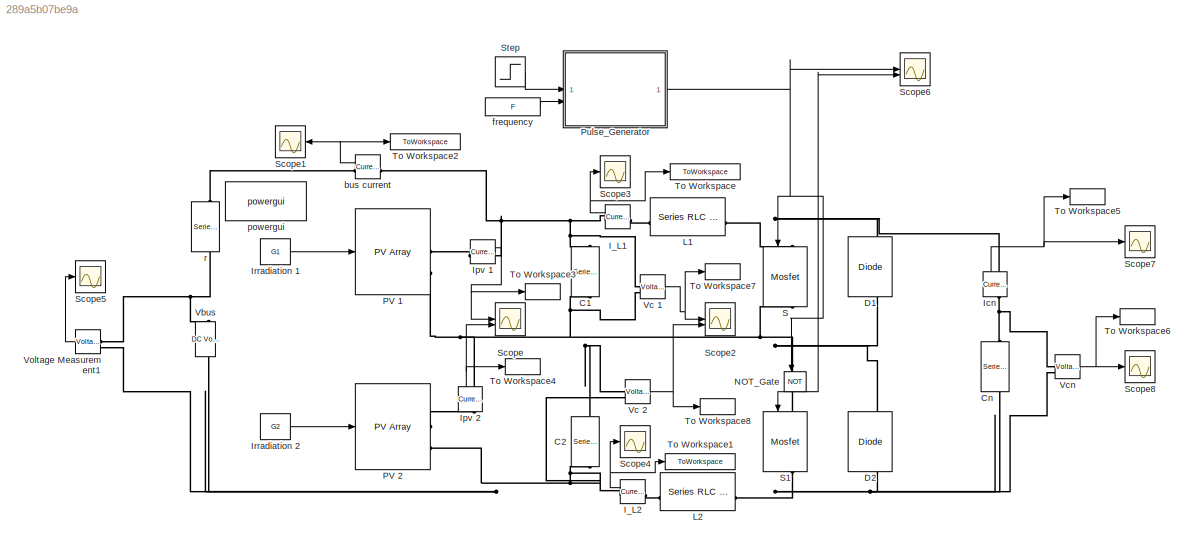
MODEL slx_289a5b07be9a
KIND model
CONFIG AbsTol = auto
CONFIG EnableMultiTasking = off
CONFIG FixedStep = auto
CONFIG MaxStep = auto
CONFIG MinStep = auto
CONFIG RelTol = 1e-3
CONFIG SampleTimeConstraint = Unconstrained
CONFIG SolverName = VariableStepAuto
CONFIG StartTime = 0.0
CONFIG StopTime = tFinal
BLOCK [Reference] C1  REF=spsSeriesRLCBranchLib/Series RLC Branch
  NameLocation = left
  SourceBlock = spsSeriesRLCBranchLib/Series RLC Branch
  SourceType = Series RLC Branch
BLOCK [Reference] C2  REF=spsSeriesRLCBranchLib/Series RLC Branch
  NameLocation = left
  SourceBlock = spsSeriesRLCBranchLib/Series RLC Branch
  SourceType = Series RLC Branch
BLOCK [Reference] Cn  REF=spsSeriesRLCBranchLib/Series RLC Branch
  NameLocation = left
  SourceBlock = spsSeriesRLCBranchLib/Series RLC Branch
  SourceType = Series RLC Branch
BLOCK [Reference] D1  REF=spsDiodeLib/Diode
  NameLocation = right
  SourceBlock = spsDiodeLib/Diode
  SourceType = Diode
BLOCK [Reference] D2  REF=spsDiodeLib/Diode
  NameLocation = right
  SourceBlock = spsDiodeLib/Diode
  SourceType = Diode
BLOCK [Reference] I_L1  REF=spsCurrentMeasurementLib/Current Measurement
  LibrarySourceBlock = sps_lib/Sensors and Measurements/Current Measurement
  SourceBlock = spsCurrentMeasurementLib/Current Measurement
  SourceType = Current Measurement
  UserDataPersistent = on
BLOCK [Reference] I_L2  REF=spsCurrentMeasurementLib/Current Measurement
  LibrarySourceBlock = sps_lib/Sensors and Measurements/Current Measurement
  SourceBlock = spsCurrentMeasurementLib/Current Measurement
  SourceType = Current Measurement
  UserDataPersistent = on
BLOCK [Reference] Icn   REF=spsCurrentMeasurementLib/Current Measurement
  LibrarySourceBlock = sps_lib/Sensors and Measurements/Current Measurement
  NameLocation = right
  SourceBlock = spsCurrentMeasurementLib/Current Measurement
  SourceType = Current Measurement
  UserDataPersistent = on
BLOCK [Reference] Ipv 1  REF=spsCurrentMeasurementLib/Current Measurement
  LibrarySourceBlock = sps_lib/Sensors and Measurements/Current Measurement
  SourceBlock = spsCurrentMeasurementLib/Current Measurement
  SourceType = Current Measurement
  UserDataPersistent = on
BLOCK [Reference] Ipv 2  REF=spsCurrentMeasurementLib/Current Measurement
  LibrarySourceBlock = sps_lib/Sensors and Measurements/Current Measurement
  NameLocation = right
  SourceBlock = spsCurrentMeasurementLib/Current Measurement
  SourceType = Current Measurement
  UserDataPersistent = on
BLOCK [Constant] Irradiation 1 
  SampleTime = Inf
  Value = G1
BLOCK [Constant] Irradiation 2
  SampleTime = Inf
  Value = G2
BLOCK [Reference] L1  REF=spsSeriesRLCBranchLib/Series RLC Branch
  SourceBlock = spsSeriesRLCBranchLib/Series RLC Branch
  SourceType = Series RLC Branch
BLOCK [Reference] L2  REF=spsSeriesRLCBranchLib/Series RLC Branch
  SourceBlock = spsSeriesRLCBranchLib/Series RLC Branch
  SourceType = Series RLC Branch
BLOCK [Logic] NOT_Gate
  AllPortsSameDT = off
  IconShape = distinctive
  NameLocation = left
  Operator = NOT
  OutDataTypeStr = boolean
BLOCK [Reference] PV 1  REF=spsPVArrayLib/PV Array
  SourceBlock = spsPVArrayLib/PV Array
  SourceType = PV array
BLOCK [Reference] PV 2  REF=spsPVArrayLib/PV Array
  SourceBlock = spsPVArrayLib/PV Array
  SourceType = PV array
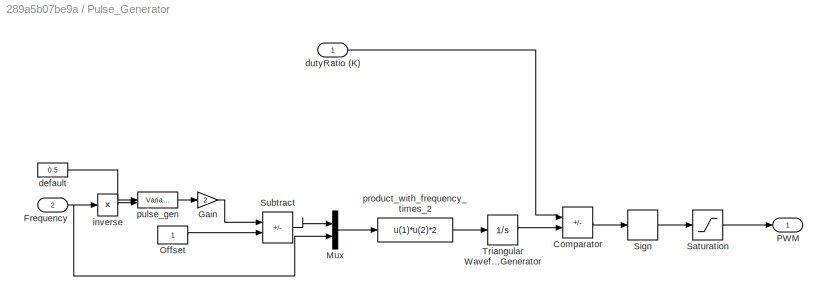
BLOCK [SubSystem] Pulse_Generator
BLOCK [Sum] Pulse_Generator/Comparator
  IconShape = rectangular
  Inputs = +-
BLOCK [Inport] Pulse_Generator/Frequency
  Port = 2
BLOCK [Gain] Pulse_Generator/Gain
  Gain = 2
BLOCK [Mux] Pulse_Generator/Mux
  DisplayOption = bar
  Inputs = 2
BLOCK [Constant] Pulse_Generator/Offset
BLOCK [Outport] Pulse_Generator/PWM
BLOCK [Saturate] Pulse_Generator/Saturation
  LowerLimit = 0
  UpperLimit = 1
BLOCK [Signum] Pulse_Generator/Sign
BLOCK [Sum] Pulse_Generator/Subtract
  IconShape = rectangular
  Inputs = +-
BLOCK [Integrator] Pulse_Generator/Triangular Waveform Generator
BLOCK [Constant] Pulse_Generator/default
  Value = 0.5
BLOCK [Inport] Pulse_Generator/dutyRatio (K)
BLOCK [Product] Pulse_Generator/inverse
  Inputs = /
BLOCK [Fcn] Pulse_Generator/product_with_frequency_times_2
  Expr = u(1)*u(2)*2
  NameLocation = top
BLOCK [VariablePulseGenerator] Pulse_Generator/pulse_gen
  SampleTime = 0.1
BLOCK [Reference] S  REF=spsMosfetLib/Mosfet
  NameLocation = left
  SourceBlock = spsMosfetLib/Mosfet
  SourceType = Mosfet
BLOCK [Reference] S1  REF=spsMosfetLib/Mosfet
  NameLocation = left
  SourceBlock = spsMosfetLib/Mosfet
  SourceType = Mosfet
BLOCK [Scope] Scope
  Floating = off
  NumInputPorts = 2
  ScopeSpecificationString = Simulink.scopes.TimeScopeBlockCfg('CurrentConfiguration', extmgr.ConfigurationSet(extmgr.Configuration('Core','General UI',true),extmgr.Configuration('Core','Source UI',true),extmgr.Configuration('Sources','WiredSimulink',true),extmgr.Configuration('Visuals','Time Domain',true,'SerializedDisplays',{struct('MinYLimReal','1.81063','MaxYLimReal','2.72301','YLabelReal','','MinYLimMag','1.81063','MaxYL...<+2096ch>
BLOCK [Scope] Scope1
  Floating = off
  NumInputPorts = 1
  ScopeSpecificationString = Simulink.scopes.TimeScopeBlockCfg('CurrentConfiguration', extmgr.ConfigurationSet(extmgr.Configuration('Core','General UI',true),extmgr.Configuration('Core','Source UI',true),extmgr.Configuration('Sources','WiredSimulink',true,'DataLoggingVariableName','ScopeData1'),extmgr.Configuration('Visuals','Time Domain',true,'SerializedDisplays',{struct('MinYLimReal','1.97227','MaxYLimReal','4.09128','YLabe...<+1451ch>
BLOCK [Scope] Scope2
  Floating = off
  NumInputPorts = 2
  ScopeSpecificationString = Simulink.scopes.TimeScopeBlockCfg('CurrentConfiguration', extmgr.ConfigurationSet(extmgr.Configuration('Core','General UI',true),extmgr.Configuration('Core','Source UI',true),extmgr.Configuration('Sources','WiredSimulink',true,'DataLoggingVariableName','ScopeData2'),extmgr.Configuration('Visuals','Time Domain',true,'SerializedDisplays',{struct('MinYLimReal','15.24555','MaxYLimReal','20.29979','YLa...<+2141ch>
BLOCK [Scope] Scope3
  Floating = off
  NumInputPorts = 1
  ScopeSpecificationString = Simulink.scopes.TimeScopeBlockCfg('CurrentConfiguration', extmgr.ConfigurationSet(extmgr.Configuration('Core','General UI',true),extmgr.Configuration('Core','Source UI',true),extmgr.Configuration('Sources','WiredSimulink',true,'DataLoggingVariableName','ScopeData3'),extmgr.Configuration('Visuals','Time Domain',true,'SerializedDisplays',{struct('MinYLimReal','-0.23849','MaxYLimReal','1.73166','YLab...<+1479ch>
BLOCK [Scope] Scope4
  Floating = off
  NumInputPorts = 1
  ScopeSpecificationString = Simulink.scopes.TimeScopeBlockCfg('CurrentConfiguration', extmgr.ConfigurationSet(extmgr.Configuration('Core','General UI',true),extmgr.Configuration('Core','Source UI',true),extmgr.Configuration('Sources','WiredSimulink',true,'DataLoggingVariableName','ScopeData4'),extmgr.Configuration('Visuals','Time Domain',true,'SerializedDisplays',{struct('MinYLimReal','-0.28642','MaxYLimReal','2.17348','YLab...<+1452ch>
BLOCK [Scope] Scope5
  Floating = off
  NumInputPorts = 1
  ScopeSpecificationString = Simulink.scopes.TimeScopeBlockCfg('CurrentConfiguration', extmgr.ConfigurationSet(extmgr.Configuration('Core','General UI',true),extmgr.Configuration('Core','Source UI',true),extmgr.Configuration('Sources','WiredSimulink',true,'DataLoggingVariableName','ScopeData1'),extmgr.Configuration('Visuals','Time Domain',true,'SerializedDisplays',{struct('MinYLimReal','26.00000','MaxYLimReal','46.00000','YLa...<+1485ch>
BLOCK [Scope] Scope6
  Floating = off
  NumInputPorts = 2
  ScopeSpecificationString = Simulink.scopes.TimeScopeBlockCfg('CurrentConfiguration', extmgr.ConfigurationSet(extmgr.Configuration('Core','General UI',true),extmgr.Configuration('Core','Source UI',true),extmgr.Configuration('Sources','WiredSimulink',true,'DataLoggingVariableName','ScopeData2'),extmgr.Configuration('Visuals','Time Domain',true,'SerializedDisplays',{struct('MinYLimReal','-0.125','MaxYLimReal','1.125','YLabelRe...<+2107ch>
BLOCK [Scope] Scope7
  Floating = off
  NumInputPorts = 1
  ScopeSpecificationString = Simulink.scopes.TimeScopeBlockCfg('CurrentConfiguration', extmgr.ConfigurationSet(extmgr.Configuration('Core','General UI',true),extmgr.Configuration('Core','Source UI',true),extmgr.Configuration('Sources','WiredSimulink',true,'DataLoggingVariableName','ScopeData1'),extmgr.Configuration('Visuals','Time Domain',true,'SerializedDisplays',{struct('MinYLimReal','-2.31635','MaxYLimReal','1.99304','YLab...<+1481ch>
BLOCK [Scope] Scope8
  Floating = off
  NumInputPorts = 1
  ScopeSpecificationString = Simulink.scopes.TimeScopeBlockCfg('CurrentConfiguration', extmgr.ConfigurationSet(extmgr.Configuration('Core','General UI',true),extmgr.Configuration('Core','Source UI',true),extmgr.Configuration('Sources','WiredSimulink',true,'DataLoggingVariableName','ScopeData2'),extmgr.Configuration('Visuals','Time Domain',true,'SerializedDisplays',{struct('MinYLimReal','32.02585','MaxYLimReal','40.4244','YLab...<+1483ch>
BLOCK [Step] Step
  After = final_step
  Before = initial_step
  SampleTime = 0
  Time = step_time
BLOCK [ToWorkspace] To Workspace
  FixptAsFi = on
  MaxDataPoints = inf
  SampleTime = -1
  SaveFormat = Timeseries
  VariableName = IL1
BLOCK [ToWorkspace] To Workspace1
  FixptAsFi = on
  MaxDataPoints = inf
  SampleTime = -1
  SaveFormat = Timeseries
  VariableName = IL2
BLOCK [ToWorkspace] To Workspace2
  FixptAsFi = on
  MaxDataPoints = inf
  SampleTime = -1
  SaveFormat = Timeseries
  VariableName = IBus
BLOCK [ToWorkspace] To Workspace3
  FixptAsFi = on
  MaxDataPoints = inf
  SampleTime = -1
  SaveFormat = Timeseries
  VariableName = IPV1
BLOCK [ToWorkspace] To Workspace4
  FixptAsFi = on
  MaxDataPoints = inf
  SampleTime = -1
  SaveFormat = Timeseries
  VariableName = IPV2
BLOCK [ToWorkspace] To Workspace5
  FixptAsFi = on
  MaxDataPoints = inf
  SampleTime = -1
  SaveFormat = Timeseries
  VariableName = ICn
BLOCK [ToWorkspace] To Workspace6
  FixptAsFi = on
  MaxDataPoints = inf
  SampleTime = -1
  SaveFormat = Timeseries
  VariableName = VCn
BLOCK [ToWorkspace] To Workspace7
  FixptAsFi = on
  MaxDataPoints = inf
  SampleTime = -1
  SaveFormat = Timeseries
  VariableName = VC1
BLOCK [ToWorkspace] To Workspace8
  FixptAsFi = on
  MaxDataPoints = inf
  SampleTime = -1
  SaveFormat = Timeseries
  VariableName = VC2
BLOCK [Reference] Vbus  REF=spsDCVoltageSourceLib/DC Voltage Source
  LibrarySourceBlock = sps_lib/Sources/DC Voltage Source
  NameLocation = right
  SourceBlock = spsDCVoltageSourceLib/DC Voltage Source
  SourceType = DC Voltage Source
BLOCK [Reference] Vc 1  REF=spsVoltageMeasurementLib/Voltage Measurement
  LibrarySourceBlock = sps_lib/Sensors and Measurements/Voltage Measurement
  SourceBlock = spsVoltageMeasurementLib/Voltage Measurement
  SourceType = Voltage Measurement
  UserDataPersistent = on
BLOCK [Reference] Vc 2  REF=spsVoltageMeasurementLib/Voltage Measurement
  LibrarySourceBlock = sps_lib/Sensors and Measurements/Voltage Measurement
  SourceBlock = spsVoltageMeasurementLib/Voltage Measurement
  SourceType = Voltage Measurement
  UserDataPersistent = on
BLOCK [Reference] Vcn  REF=spsVoltageMeasurementLib/Voltage Measurement
  LibrarySourceBlock = sps_lib/Sensors and Measurements/Voltage Measurement
  SourceBlock = spsVoltageMeasurementLib/Voltage Measurement
  SourceType = Voltage Measurement
  UserDataPersistent = on
BLOCK [Reference] Voltage Measurement1  REF=spsVoltageMeasurementLib/Voltage Measurement
  LibrarySourceBlock = sps_lib/Sensors and Measurements/Voltage Measurement
  SourceBlock = spsVoltageMeasurementLib/Voltage Measurement
  SourceType = Voltage Measurement
  UserDataPersistent = on
BLOCK [Reference] bus current  REF=spsCurrentMeasurementLib/Current Measurement
  LibrarySourceBlock = sps_lib/Sensors and Measurements/Current Measurement
  SourceBlock = spsCurrentMeasurementLib/Current Measurement
  SourceType = Current Measurement
  UserDataPersistent = on
BLOCK [Constant] frequency
  Value = F
BLOCK [Reference] powergui  REF=spspowerguiLib/powergui
  Priority = 1
  SourceBlock = spspowerguiLib/powergui
  SourceType = PSB option menu block
BLOCK [Reference] r  REF=spsSeriesRLCBranchLib/Series RLC Branch
  NameLocation = left
  SourceBlock = spsSeriesRLCBranchLib/Series RLC Branch
  SourceType = Series RLC Branch
NET I_L1:1 -> Scope3:1, To Workspace:1
NET I_L2:1 -> Scope4:1, To Workspace1:1
NET Icn :1 -> Scope7:1, To Workspace5:1
NET Ipv 1:1 -> Scope:1, To Workspace3:1
NET Ipv 2:1 -> Scope:2, To Workspace4:1
LINE Irradiation 1 :1 -> PV 1:1
LINE Irradiation 2:1 -> PV 2:1
NET NOT_Gate:1 -> S1:1, Scope6:2
LINE Pulse_Generator/Comparator:1 -> Pulse_Generator/Sign:1
NET Pulse_Generator/Frequency:1 -> Pulse_Generator/Mux:2, Pulse_Generator/inverse:1
LINE Pulse_Generator/Gain:1 -> Pulse_Generator/Subtract:1
LINE Pulse_Generator/Mux:1 -> Pulse_Generator/product_with_frequency_times_2:1
LINE Pulse_Generator/Offset:1 -> Pulse_Generator/Subtract:2
LINE Pulse_Generator/Saturation:1 -> Pulse_Generator/PWM:1
LINE Pulse_Generator/Sign:1 -> Pulse_Generator/Saturation:1
LINE Pulse_Generator/Subtract:1 -> Pulse_Generator/Mux:1
LINE Pulse_Generator/Triangular Waveform Generator:1 -> Pulse_Generator/Comparator:2
LINE Pulse_Generator/default:1 -> Pulse_Generator/pulse_gen:1
LINE Pulse_Generator/dutyRatio (K):1 -> Pulse_Generator/Comparator:1
LINE Pulse_Generator/inverse:1 -> Pulse_Generator/pulse_gen:2
LINE Pulse_Generator/product_with_frequency_times_2:1 -> Pulse_Generator/Triangular Waveform Generator:1
LINE Pulse_Generator/pulse_gen:1 -> Pulse_Generator/Gain:1
NET Pulse_Generator:1 -> NOT_Gate:1, S:1, Scope6:1
LINE Step:1 -> Pulse_Generator:1
NET Vc 1:1 -> Scope2:1, To Workspace7:1
NET Vc 2:1 -> Scope2:2, To Workspace8:1
NET Vcn:1 -> Scope8:1, To Workspace6:1
LINE Voltage Measurement1:1 -> Scope5:1
NET bus current:1 -> Scope1:1, To Workspace2:1
LINE frequency:1 -> Pulse_Generator:2
PNET net1: C1:LConn1 -- I_L1:RConn1 -- Ipv 1:RConn1 -- Vc 1:LConn1 -- bus current:LConn1
PNET net2: C1:RConn1 -- C2:LConn1 -- D1:LConn1 -- D2:RConn1 -- Ipv 2:RConn1 -- PV 1:RConn2 -- S1:LConn1 -- S:RConn1 -- Vc 1:LConn2 -- Vc 2:LConn1
PNET net3: C2:RConn1 -- I_L2:RConn1 -- PV 2:RConn2 -- Vbus:LConn1 -- Vc 2:LConn2 -- Voltage Measurement1:LConn2
PNET net4: Cn:LConn1 -- Icn :LConn1 -- Vcn:LConn1
PNET net5: Cn:RConn1 -- D2:LConn1 -- L2:RConn1 -- S1:RConn1 -- Vcn:LConn2
PNET net6: D1:RConn1 -- Icn :RConn1 -- L1:RConn1 -- S:LConn1
PLINE I_L1:LConn1 -- L1:LConn1
PLINE I_L2:LConn1 -- L2:LConn1
PLINE Ipv 1:LConn1 -- PV 1:RConn1
PLINE Ipv 2:LConn1 -- PV 2:RConn1
PNET net7: Vbus:RConn1 -- Voltage Measurement1:LConn1 -- r:RConn1
PLINE bus current:RConn1 -- r:LConn1
note: NET lines group one-source signal fan-out (src -> all destinations, sorted); 1:1 wires keep LINE; PNET lines group multi-terminal physical nets as a canonical sorted terminal list (undirected conserving connections); 2-terminal nets keep the pairwise PLINE form
